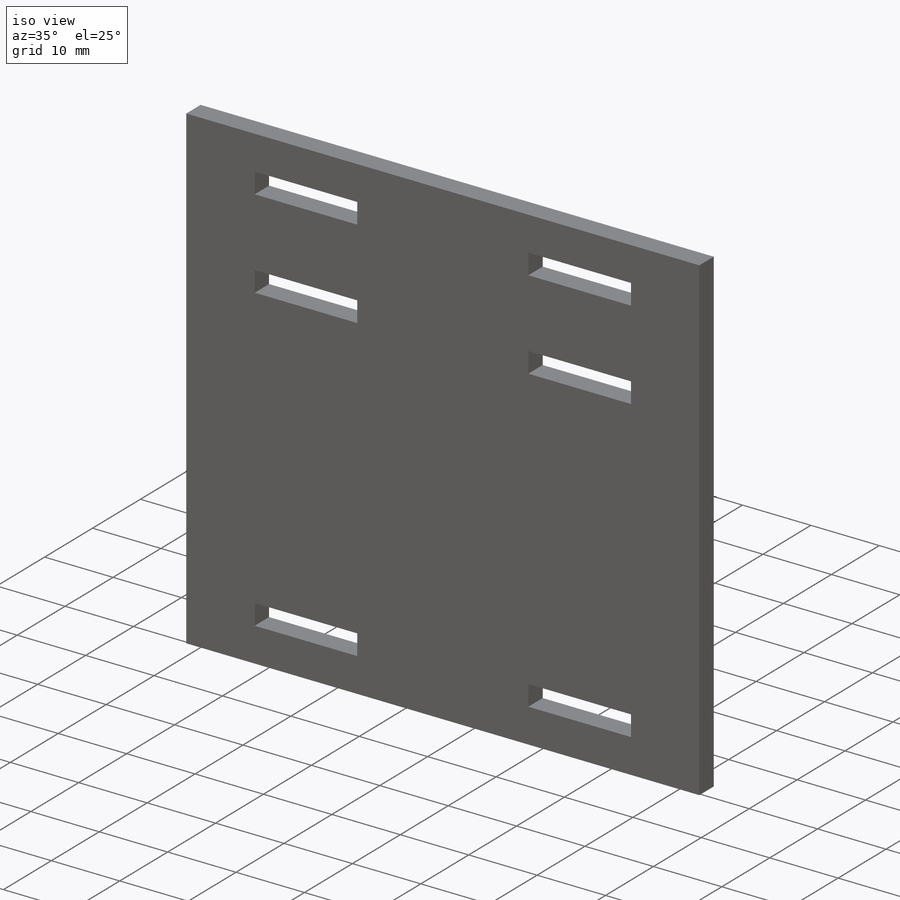
[diagram: iso view]
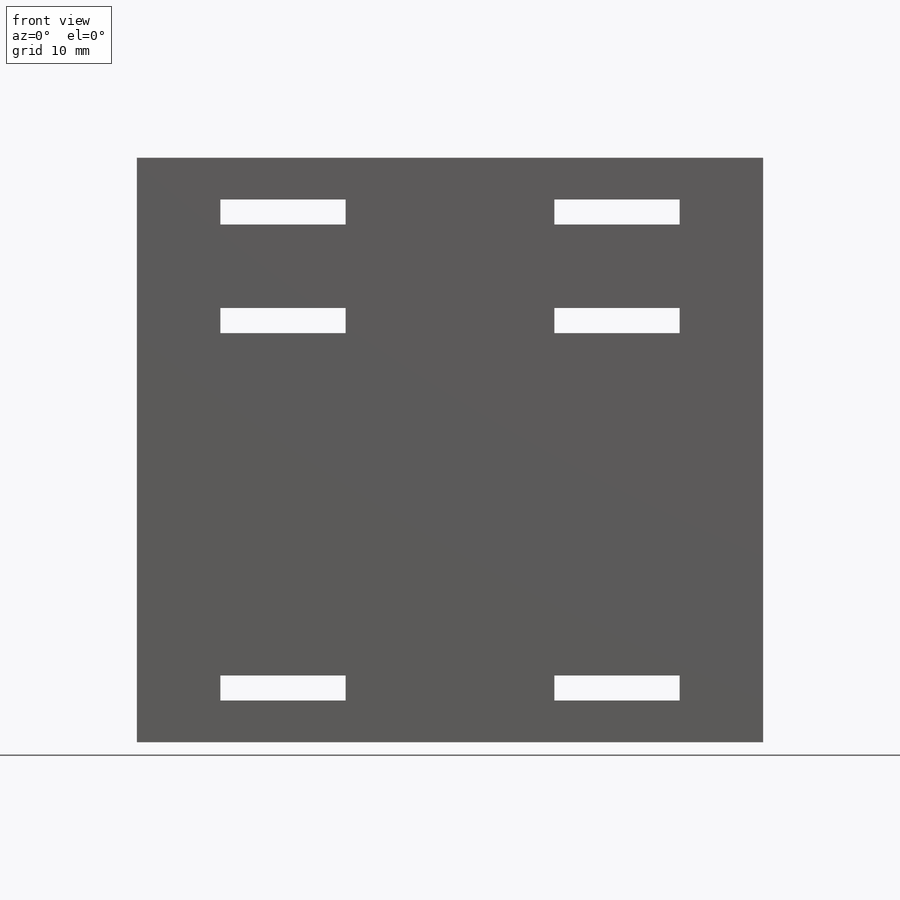
[diagram: front view]
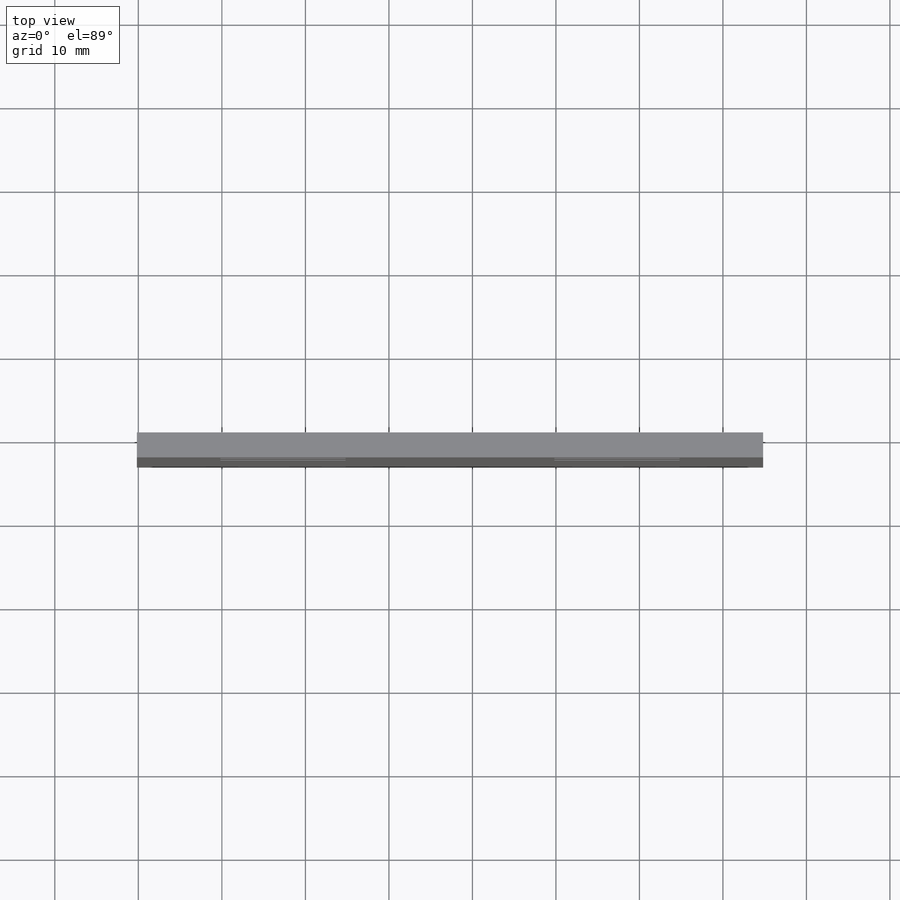
[diagram: top view]
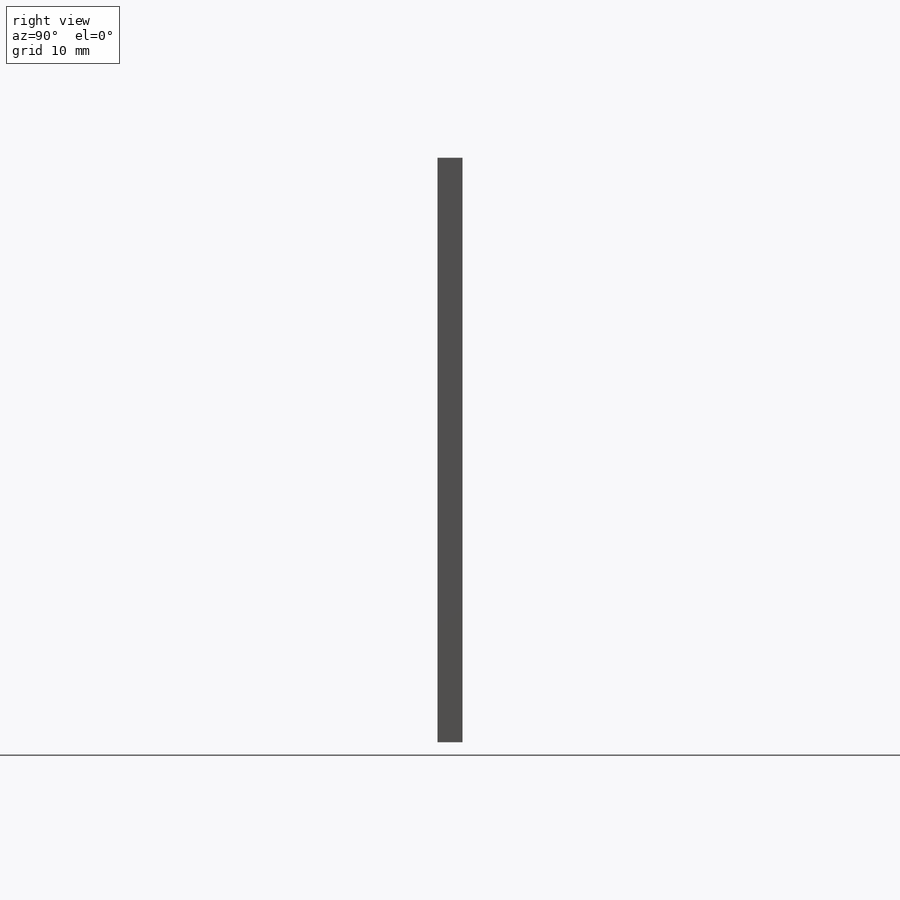
[diagram: right view]
SOLIDWORKS PART (.sldprt)
format: sldprt  version: not decoded by parser v0  size: 206,848 bytes
history: native  units: mm
features: extrude x23, material x1, sketch x1 (+13 scaffold rows collapsed)
feature tree (38):
  scaffold x13  (default folders/planes/origin — collapsed)
  material  "Matériau <non spécifié>"
  sketch  "Esquisse1"  dims[c1.D1=75.0mm c1.D2=70.0mm c1.D3=3.0mm c1.D4=3.0mm c1.D5=5.0mm c1.D6=5.0mm c1.D7=10.0mm c1.D8=25.0mm c1.D9=10.0mm c1.D10=15.0mm c1.D11=3.0mm c1.D12=5.0mm c1.D13=5.0mm c1.D14=15.0mm c1.D15=15.0mm c1.D16=25.0mm c1.D17=10.0mm c1.D18=3.0mm c1.D19=2.9857mm c1.D20=15.0mm c2.D19=2.9857mm c2.D20=15.0mm c3.D19=10.0mm c3.D20=10.0mm c3.D21=3.0mm c3.D22=3.0mm]
  extrude  "Boss.-Extru.1"  Depth=3mm flange_len_value=0
  extrude  "Associativity_IDs"  Depth=0 flange_len_value=0
  extrude  "Associativity_IDs"  Depth=0 flange_len_value=0
  extrude  "Associativity_IDs"  Depth=0 flange_len_value=0
  extrude  "Associativity_IDs"  Depth=0 flange_len_value=0
  extrude  "Associativity_IDs"  Depth=0 flange_len_value=0
  extrude  "Associativity_IDs"  Depth=0 flange_len_value=0
  extrude  "Associativity_IDs"  Depth=0 flange_len_value=0
  extrude  "Associativity_IDs"  Depth=0 flange_len_value=0
  extrude  "Associativity_IDs"  Depth=0 flange_len_value=0
  extrude  "Associativity_IDs"  Depth=0 flange_len_value=0
  extrude  "Associativity_IDs"  Depth=0 flange_len_value=0
  extrude  "Associativity_IDs"  Depth=0 flange_len_value=0
  extrude  "Associativity_IDs"  Depth=0 flange_len_value=0
  extrude  "Associativity_IDs"  Depth=0 flange_len_value=0
  extrude  "Associativity_IDs"  Depth=0 flange_len_value=0
  extrude  "Associativity_IDs"  Depth=0 flange_len_value=0
  extrude  "Associativity_IDs"  Depth=0 flange_len_value=0
  extrude  "Associativity_IDs"  Depth=0 flange_len_value=0
  extrude  "Associativity_IDs"  Depth=0 flange_len_value=0
  extrude  "Associativity_IDs"  Depth=0 flange_len_value=0
  extrude  "Associativity_IDs"  Depth=0 flange_len_value=0
  extrude  "Associativity_IDs"  Depth=0 flange_len_value=0
decode coverage: 24 of 24 modeling features carry decoded parameters
note: suppression state not decoded; provenance and decode notes live in map.json
